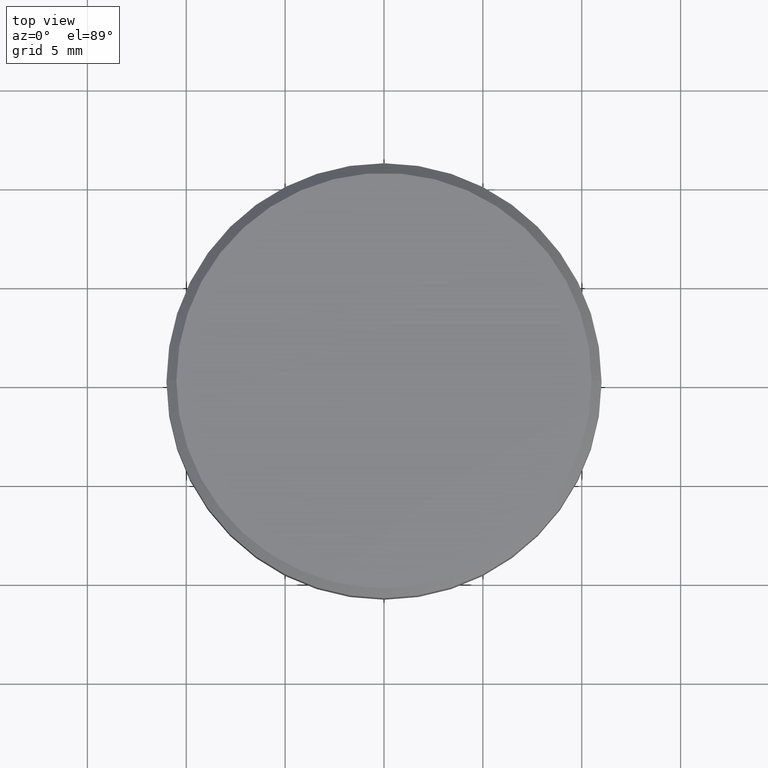
[diagram: clean part render]
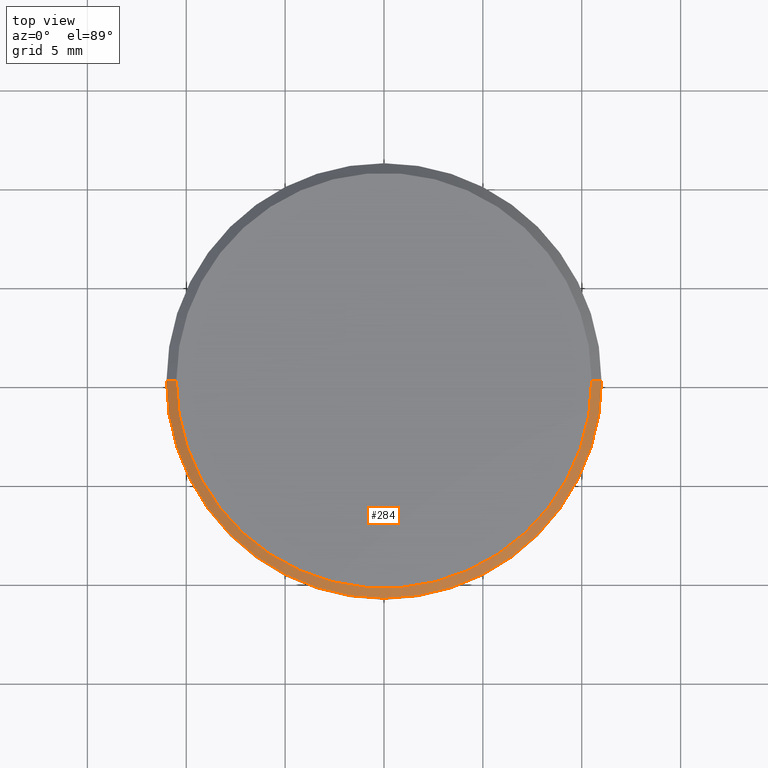
[diagram: same view with one face highlighted and labeled with its STEP entity id]
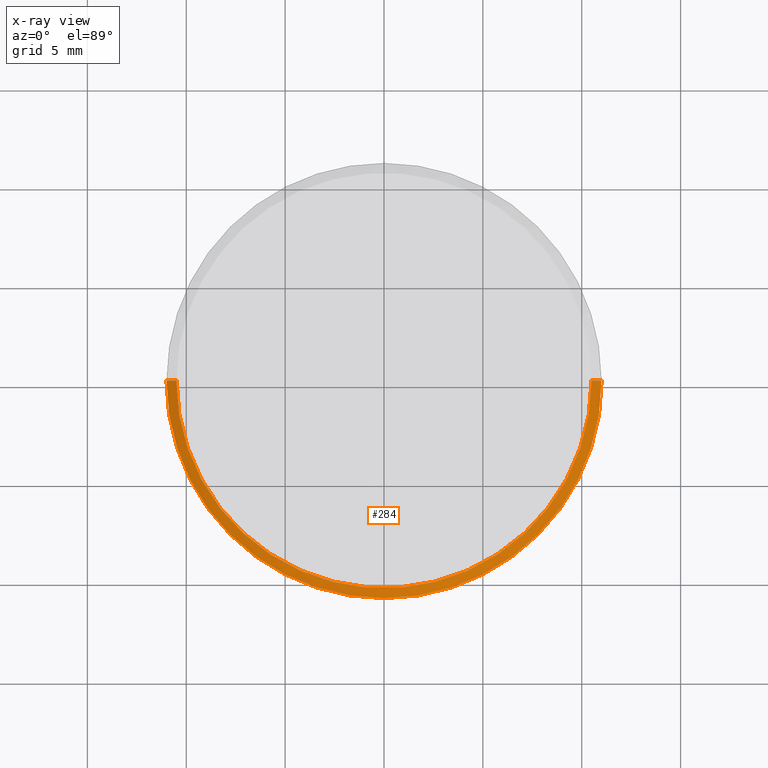
[diagram: x-ray of the same camera — body ghosted, the highlighted face saturated]
A machine part, top view. The second image highlights one B-rep face of the part: STEP entity #284.
The next image is the same camera in x-ray: the body ghosted, the highlighted face saturated — about 0% of this face is hidden behind the body in this view.
In plain terms, the highlighted conical surface has half-angle 45 deg.
Its self-contained STEP definition (entity closure, byte-faithful):
#3 = ORIENTED_EDGE ( 'NONE', *, *, #164, .F. ) ;
#22 = DIRECTION ( 'NONE',  ( 1.000000000000000000, 0.000000000000000000, 0.000000000000000000 ) ) ;
#40 = AXIS2_PLACEMENT_3D ( 'NONE', #261, #263, #22 ) ;
#44 = EDGE_CURVE ( 'NONE', #151, #334, #253, .T. ) ;
#61 = CARTESIAN_POINT ( 'NONE',  ( 0.000000000000000000, 0.000000000000000000, -0.5000000000000004441 ) ) ;
#65 = CIRCLE ( 'NONE', #380, 11.00000000000000000 ) ;
#67 = DIRECTION ( 'NONE',  ( 0.000000000000000000, 0.000000000000000000, -1.000000000000000000 ) ) ;
#83 = AXIS2_PLACEMENT_3D ( 'NONE', #357, #67, #104 ) ;
#103 = EDGE_LOOP ( 'NONE', ( #179, #227, #344, #3 ) ) ;
#104 = DIRECTION ( 'NONE',  ( -1.000000000000000000, 0.000000000000000000, 0.000000000000000000 ) ) ;
#122 = DIRECTION ( 'NONE',  ( 0.000000000000000000, 0.000000000000000000, -1.000000000000000000 ) ) ;
#151 = VERTEX_POINT ( 'NONE', #211 ) ;
#162 = VECTOR ( 'NONE', #282, 1000.000000000000114 ) ;
#164 = EDGE_CURVE ( 'NONE', #346, #334, #65, .T. ) ;
#173 = CARTESIAN_POINT ( 'NONE',  ( -11.00000000000000000, 1.347111479062088405E-15, -0.5000000000000004441 ) ) ;
#179 = ORIENTED_EDGE ( 'NONE', *, *, #307, .F. ) ;
#184 = VECTOR ( 'NONE', #194, 1000.000000000000114 ) ;
#194 = DIRECTION ( 'NONE',  ( 0.7071067811865474617, 8.659560562354932858E-17, -0.7071067811865474617 ) ) ;
#196 = CARTESIAN_POINT ( 'NONE',  ( 10.49999999999999822, 1.285879139104720633E-15, 0.000000000000000000 ) ) ;
#211 = CARTESIAN_POINT ( 'NONE',  ( -10.49999999999999822, 0.000000000000000000, 0.000000000000000000 ) ) ;
#227 = ORIENTED_EDGE ( 'NONE', *, *, #289, .F. ) ;
#253 = LINE ( 'NONE', #353, #162 ) ;
#255 = CONICAL_SURFACE ( 'NONE', #83, 10.49999999999999822, 0.7853981633974482790 ) ;
#258 = CARTESIAN_POINT ( 'NONE',  ( 10.49999999999999822, 1.316495309083404420E-15, 0.000000000000000000 ) ) ;
#261 = CARTESIAN_POINT ( 'NONE',  ( 0.000000000000000000, 0.000000000000000000, 0.000000000000000000 ) ) ;
#263 = DIRECTION ( 'NONE',  ( -0.000000000000000000, -0.000000000000000000, 1.000000000000000000 ) ) ;
#282 = DIRECTION ( 'NONE',  ( -0.7071067811865474617, 0.000000000000000000, -0.7071067811865474617 ) ) ;
#284 = ADVANCED_FACE ( 'NONE', ( #385 ), #255, .T. ) ;
#286 = CARTESIAN_POINT ( 'NONE',  ( 11.00000000000000000, 0.000000000000000000, -0.5000000000000004441 ) ) ;
#289 = EDGE_CURVE ( 'NONE', #151, #348, #375, .T. ) ;
#307 = EDGE_CURVE ( 'NONE', #348, #346, #399, .T. ) ;
#313 = DIRECTION ( 'NONE',  ( 1.000000000000000000, 0.000000000000000000, 0.000000000000000000 ) ) ;
#334 = VERTEX_POINT ( 'NONE', #173 ) ;
#344 = ORIENTED_EDGE ( 'NONE', *, *, #44, .T. ) ;
#346 = VERTEX_POINT ( 'NONE', #286 ) ;
#348 = VERTEX_POINT ( 'NONE', #258 ) ;
#353 = CARTESIAN_POINT ( 'NONE',  ( -10.49999999999999822, 0.000000000000000000, 0.000000000000000000 ) ) ;
#357 = CARTESIAN_POINT ( 'NONE',  ( 0.000000000000000000, 0.000000000000000000, 0.000000000000000000 ) ) ;
#375 = CIRCLE ( 'NONE', #40, 10.49999999999999822 ) ;
#380 = AXIS2_PLACEMENT_3D ( 'NONE', #61, #122, #313 ) ;
#385 = FACE_OUTER_BOUND ( 'NONE', #103, .T. ) ;
#399 = LINE ( 'NONE', #196, #184 ) ;